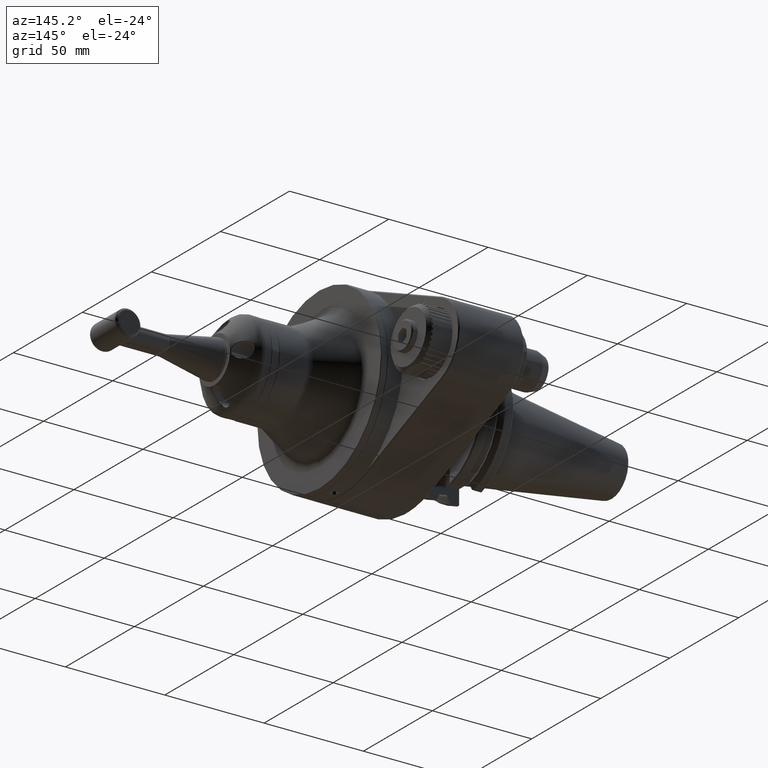
[diagram: clean part render]
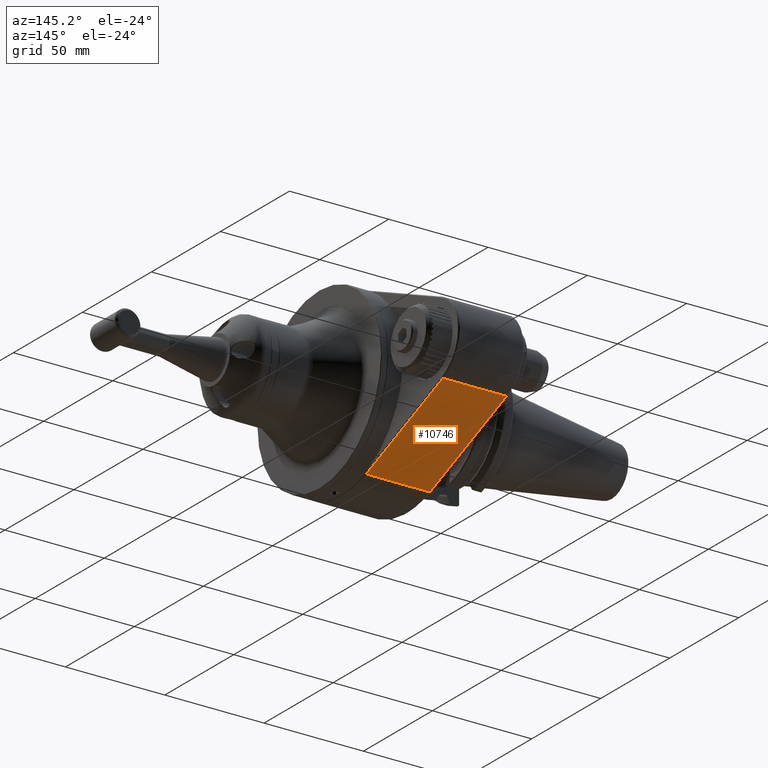
[diagram: same view with one face highlighted and labeled with its STEP entity id]
A machine part, auxiliary view. The second image highlights one B-rep face of the part: STEP entity #10746.
In plain terms, the highlighted planar face has unit normal (-0, 0.3846, -0.9231).
Its self-contained STEP definition (entity closure, byte-faithful):
#1461=FACE_OUTER_BOUND('',#2127,.T.);
#2127=EDGE_LOOP('',(#8167,#8168,#8169,#8170));
#3008=LINE('',#18178,#3845);
#3018=LINE('',#18200,#3855);
#3019=LINE('',#18202,#3856);
#3020=LINE('',#18203,#3857);
#3845=VECTOR('',#13805,10.);
#3855=VECTOR('',#13831,10.);
#3856=VECTOR('',#13834,31.99969563317);
#3857=VECTOR('',#13835,32.00018741808);
#4674=VERTEX_POINT('',#16685);
#4890=VERTEX_POINT('',#18173);
#4891=VERTEX_POINT('',#18177);
#4895=VERTEX_POINT('',#18196);
#6123=EDGE_CURVE('',#4891,#4890,#3008,.T.);
#6135=EDGE_CURVE('',#4674,#4895,#3018,.T.);
#6136=EDGE_CURVE('',#4895,#4891,#3019,.T.);
#6137=EDGE_CURVE('',#4890,#4674,#3020,.T.);
#8167=ORIENTED_EDGE('',*,*,#6135,.T.);
#8168=ORIENTED_EDGE('',*,*,#6136,.T.);
#8169=ORIENTED_EDGE('',*,*,#6123,.T.);
#8170=ORIENTED_EDGE('',*,*,#6137,.T.);
#10366=PLANE('',#11754);
#10746=ADVANCED_FACE('',(#1461),#10366,.T.);
#11754=AXIS2_PLACEMENT_3D('',#18201,#13832,#13833);
#13805=DIRECTION('',(-0.384615384615406,3.39139971075705E-14,0.923076923076914));
#13831=DIRECTION('',(0.384615384615406,3.39139971075705E-14,-0.923076923076914));
#13832=DIRECTION('center_axis',(-0.923076923076914,0.,-0.384615384615406));
#13833=DIRECTION('ref_axis',(-0.384615384615406,0.,0.923076923076914));
#13834=DIRECTION('',(-5.231420650501E-13,-1.,-2.184939694437E-13));
#13835=DIRECTION('',(5.357904936583E-13,1.,1.99061822447E-13));
#16685=CARTESIAN_POINT('',(-41.5383202524667,32.5003101427439,-17.3076334733757));
#18173=CARTESIAN_POINT('',(-41.5384616394059,0.500113797660992,-17.3076923845356));
#18177=CARTESIAN_POINT('',(-18.4615386000156,0.500150759076893,-72.6923076780329));
#18178=CARTESIAN_POINT('',(-24.2307692307706,0.500000000001736,-58.8461538461574));
#18196=CARTESIAN_POINT('',(-18.4615384204592,32.499849710546,-72.692307603216));
#18200=CARTESIAN_POINT('',(-24.2307692307709,32.4999999999983,-58.8461538461569));
#18201=CARTESIAN_POINT('Origin',(-18.46153846154,0.,-72.69230769231));
#18202=CARTESIAN_POINT('',(-18.46153848688,32.49985434569,-72.69230763089));
#18203=CARTESIAN_POINT('',(-41.53846152592,0.5001217498938,-17.30769233725));